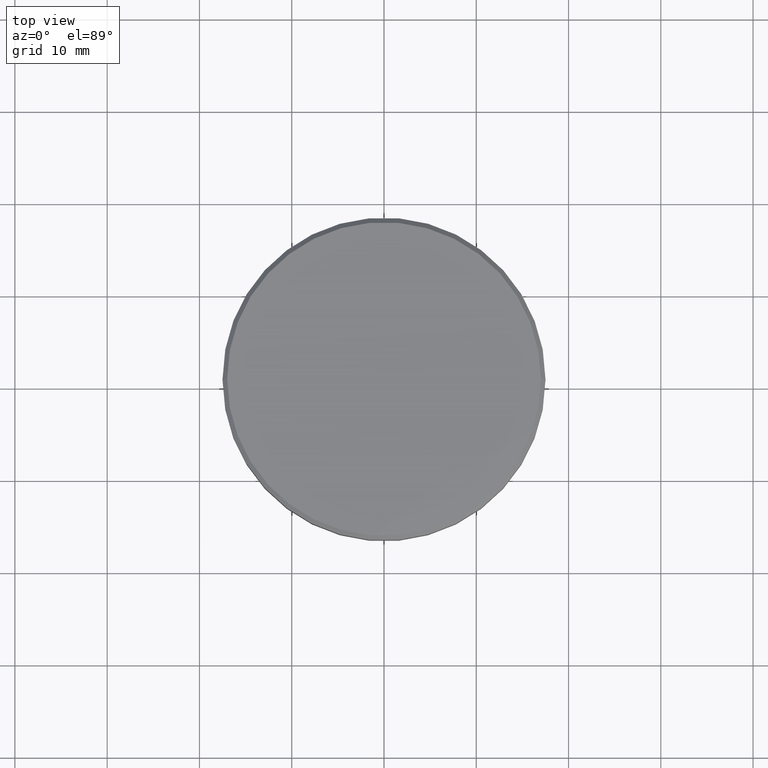
[diagram: clean part render]
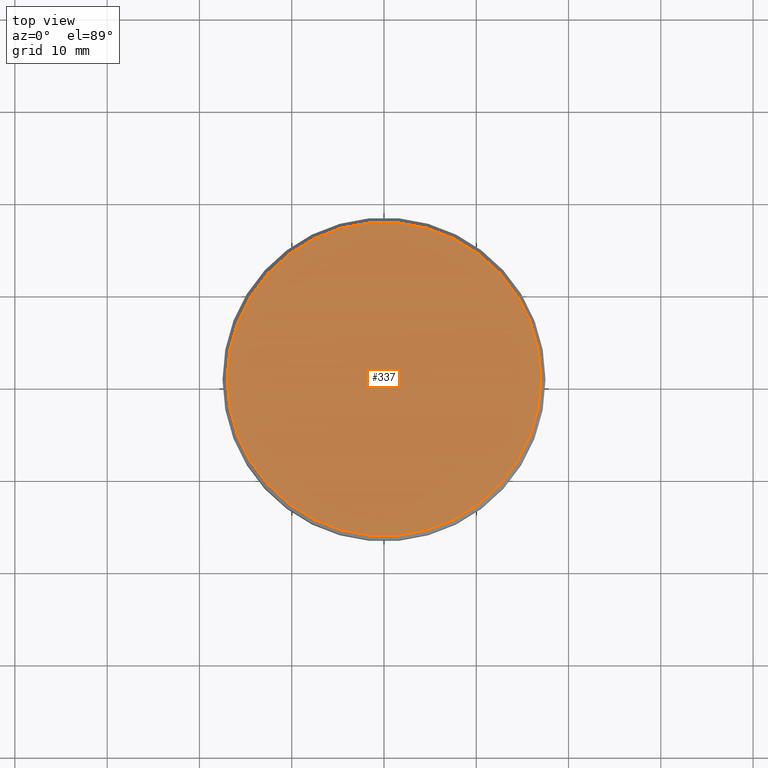
[diagram: same view with one face highlighted and labeled with its STEP entity id]
A machine part, top view. The second image highlights one B-rep face of the part: STEP entity #337.
In plain terms, the highlighted planar face has unit normal (0, -0, 1).
Its self-contained STEP definition (entity closure, byte-faithful):
#42 = EDGE_LOOP ( 'NONE', ( #429, #652 ) ) ;
#78 = DIRECTION ( 'NONE',  ( -0.000000000000000000, -0.000000000000000000, 1.000000000000000000 ) ) ;
#183 = AXIS2_PLACEMENT_3D ( 'NONE', #756, #484, #579 ) ;
#196 = AXIS2_PLACEMENT_3D ( 'NONE', #1144, #598, #237 ) ;
#237 = DIRECTION ( 'NONE',  ( 1.000000000000000000, 0.000000000000000000, 0.000000000000000000 ) ) ;
#256 = FACE_OUTER_BOUND ( 'NONE', #42, .T. ) ;
#303 = CARTESIAN_POINT ( 'NONE',  ( 16.99999999999999289, 2.112515728529184067E-15, 0.000000000000000000 ) ) ;
#314 = EDGE_CURVE ( 'NONE', #1108, #631, #727, .T. ) ;
#337 = ADVANCED_FACE ( 'NONE', ( #256 ), #1062, .T. ) ;
#427 = DIRECTION ( 'NONE',  ( 1.000000000000000000, 0.000000000000000000, 0.000000000000000000 ) ) ;
#429 = ORIENTED_EDGE ( 'NONE', *, *, #314, .T. ) ;
#437 = CIRCLE ( 'NONE', #183, 16.99999999999999289 ) ;
#484 = DIRECTION ( 'NONE',  ( -0.000000000000000000, -0.000000000000000000, 1.000000000000000000 ) ) ;
#579 = DIRECTION ( 'NONE',  ( 1.000000000000000000, 0.000000000000000000, 0.000000000000000000 ) ) ;
#598 = DIRECTION ( 'NONE',  ( 0.000000000000000000, -0.000000000000000000, 1.000000000000000000 ) ) ;
#631 = VERTEX_POINT ( 'NONE', #303 ) ;
#652 = ORIENTED_EDGE ( 'NONE', *, *, #864, .T. ) ;
#727 = CIRCLE ( 'NONE', #1146, 16.99999999999999289 ) ;
#756 = CARTESIAN_POINT ( 'NONE',  ( 0.000000000000000000, 0.000000000000000000, 0.000000000000000000 ) ) ;
#864 = EDGE_CURVE ( 'NONE', #631, #1108, #437, .T. ) ;
#891 = CARTESIAN_POINT ( 'NONE',  ( 0.000000000000000000, 0.000000000000000000, 0.000000000000000000 ) ) ;
#1062 = PLANE ( 'NONE',  #196 ) ;
#1108 = VERTEX_POINT ( 'NONE', #1143 ) ;
#1143 = CARTESIAN_POINT ( 'NONE',  ( -16.99999999999999289, 0.000000000000000000, 0.000000000000000000 ) ) ;
#1144 = CARTESIAN_POINT ( 'NONE',  ( 0.000000000000000000, 0.000000000000000000, 0.000000000000000000 ) ) ;
#1146 = AXIS2_PLACEMENT_3D ( 'NONE', #891, #78, #427 ) ;